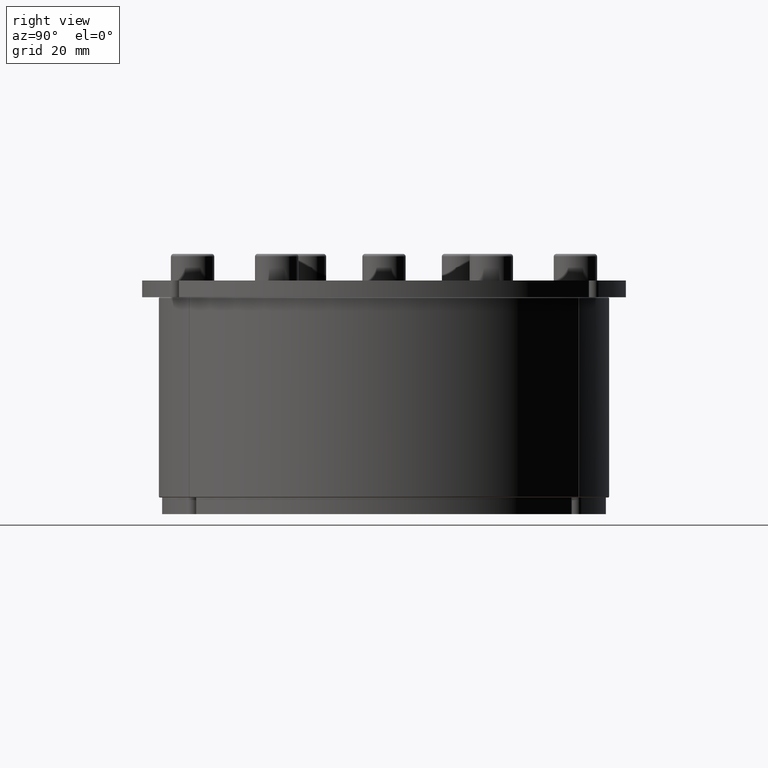
[diagram: clean part render]
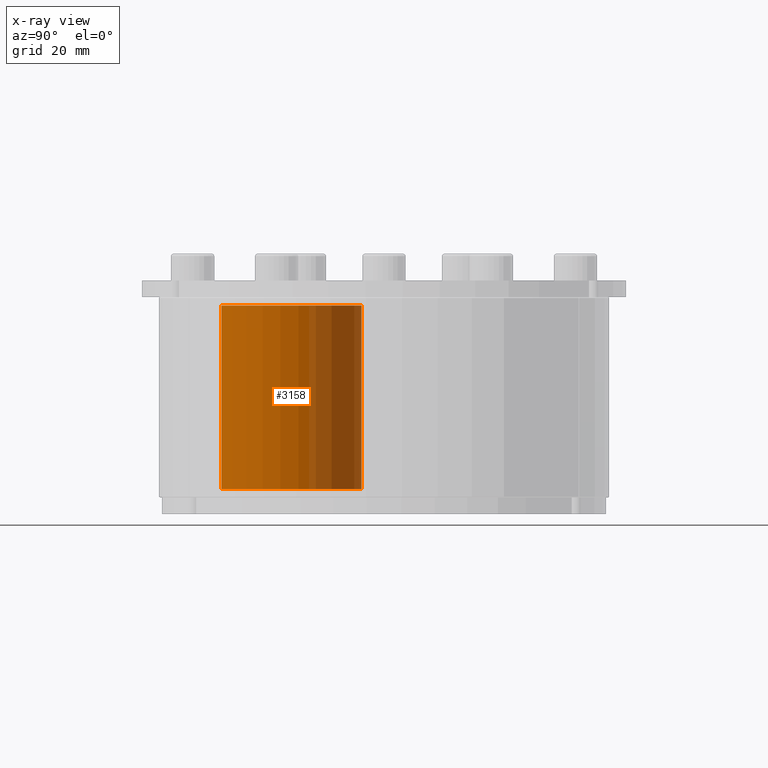
[diagram: x-ray — body ghosted, one internal face saturated and labeled with its STEP entity id]
A machine part, right view, then the same camera in x-ray: the body is ghosted and one INTERNAL B-rep face — a face not visible from any outside direction — is saturated and labeled: STEP entity #3158.
In plain terms, the highlighted cylindrical surface (partial cylindrical patch) has radius 22.5 mm, axis along (-0, -0, -1).
Its self-contained STEP definition (entity closure, byte-faithful):
#3036=CARTESIAN_POINT('',(22.5,0.0,0.0));
#3037=VERTEX_POINT('',#3036);
#3046=CARTESIAN_POINT('',(22.5,0.0,55.0));
#3047=VERTEX_POINT('',#3046);
#3048=CARTESIAN_POINT('',(22.5,0.0,0.0));
#3049=DIRECTION('',(0.0,0.0,1.0));
#3050=VECTOR('',#3049,55.0);
#3051=LINE('',#3048,#3050);
#3052=EDGE_CURVE('',#3037,#3047,#3051,.T.);
#3109=CARTESIAN_POINT('',(-22.5,0.0,0.0));
#3110=VERTEX_POINT('',#3109);
#3118=CARTESIAN_POINT('',(-22.5,0.0,55.0));
#3119=VERTEX_POINT('',#3118);
#3126=CARTESIAN_POINT('',(-22.5,0.0,0.0));
#3127=DIRECTION('',(0.0,0.0,1.0));
#3128=VECTOR('',#3127,55.0);
#3129=LINE('',#3126,#3128);
#3130=EDGE_CURVE('',#3110,#3119,#3129,.T.);
#3135=CARTESIAN_POINT('',(0.0,0.0,0.0));
#3136=DIRECTION('',(0.0,0.0,1.0));
#3137=DIRECTION('',(-1.0,0.0,0.0));
#3138=AXIS2_PLACEMENT_3D('',#3135,#3136,#3137);
#3139=CYLINDRICAL_SURFACE('',#3138,22.5);
#3140=CARTESIAN_POINT('',(0.0,0.0,0.0));
#3141=DIRECTION('',(0.0,0.0,-1.0));
#3142=DIRECTION('',(-1.0,0.0,0.0));
#3143=AXIS2_PLACEMENT_3D('',#3140,#3141,#3142);
#3144=CIRCLE('',#3143,22.5);
#3145=EDGE_CURVE('',#3110,#3037,#3144,.T.);
#3146=ORIENTED_EDGE('',*,*,#3145,.F.);
#3147=ORIENTED_EDGE('',*,*,#3130,.T.);
#3148=CARTESIAN_POINT('',(0.0,0.0,55.0));
#3149=DIRECTION('',(0.0,0.0,1.0));
#3150=DIRECTION('',(-1.0,0.0,0.0));
#3151=AXIS2_PLACEMENT_3D('',#3148,#3149,#3150);
#3152=CIRCLE('',#3151,22.5);
#3153=EDGE_CURVE('',#3047,#3119,#3152,.T.);
#3154=ORIENTED_EDGE('',*,*,#3153,.F.);
#3155=ORIENTED_EDGE('',*,*,#3052,.F.);
#3156=EDGE_LOOP('',(#3146,#3147,#3154,#3155));
#3157=FACE_OUTER_BOUND('',#3156,.T.);
#3158=ADVANCED_FACE('',(#3157),#3139,.T.);